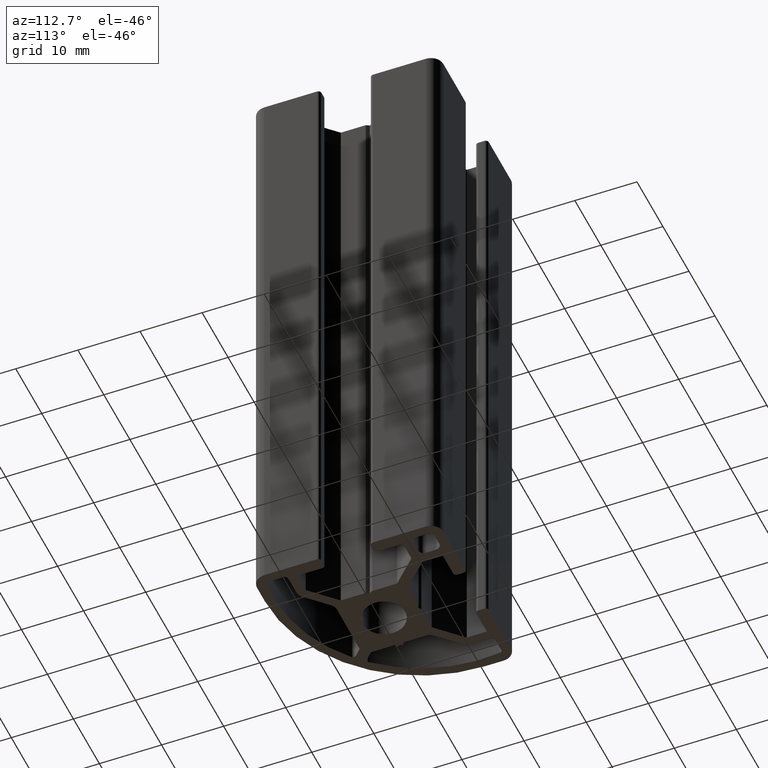
[diagram: clean part render]
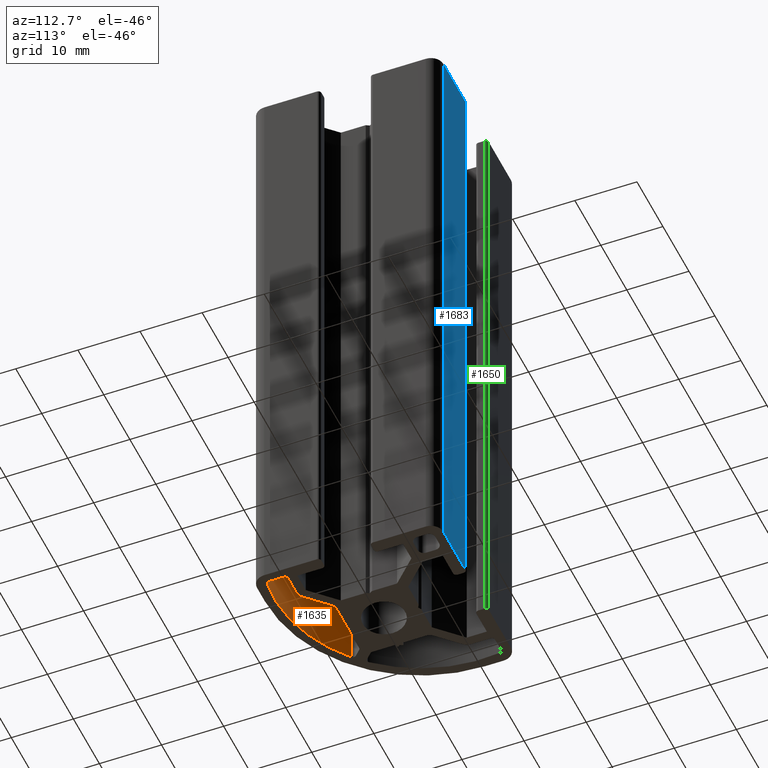
[diagram: same view with three faces highlighted in distinct colors, each labeled with its STEP entity id]
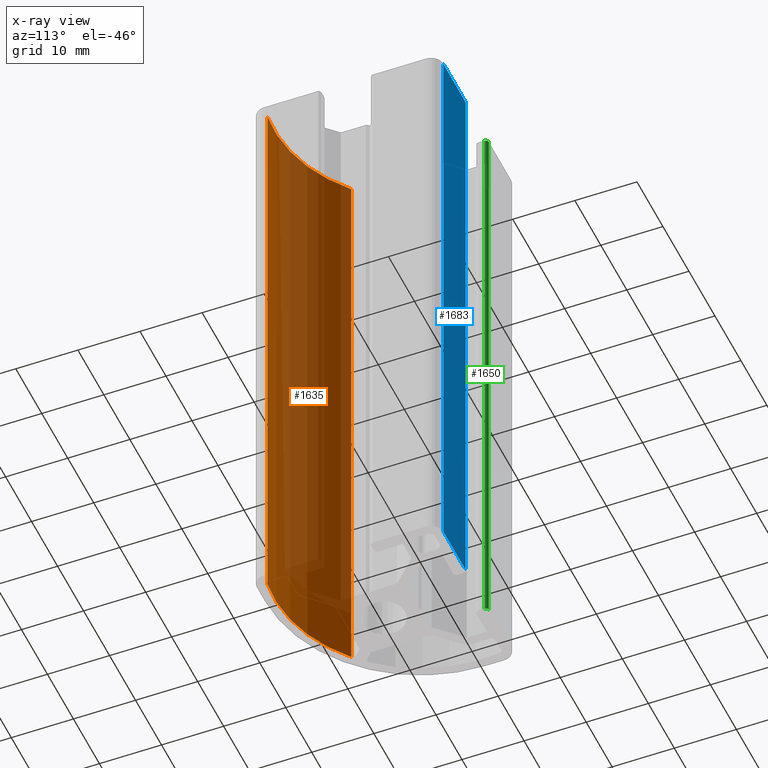
[diagram: x-ray of the same camera — body ghosted, the three highlighted faces saturated]
A machine part, auxiliary view with three faces highlighted in distinct colors.
The next image is the same camera in x-ray (body ghosted, the three faces saturated) — at least one of them is partly hidden behind the body in this view.
Their STEP definitions:

[orange] entity #1635 — the highlighted cylindrical surface (partial cylindrical patch) has radius 23.5 mm, axis along (0, 0, 1).
#102=FACE_OUTER_BOUND('',#186,.T.);
#186=EDGE_LOOP('',(#1193,#1194,#1195,#1196));
#307=LINE('',#2490,#486);
#308=LINE('',#2496,#487);
#486=VECTOR('',#2007,100.);
#487=VECTOR('',#2014,100.);
#636=CIRCLE('',#1748,23.5);
#637=CIRCLE('',#1749,23.5);
#730=VERTEX_POINT('',#2486);
#731=VERTEX_POINT('',#2488);
#732=VERTEX_POINT('',#2492);
#733=VERTEX_POINT('',#2494);
#921=EDGE_CURVE('',#731,#730,#307,.T.);
#922=EDGE_CURVE('',#730,#732,#636,.T.);
#923=EDGE_CURVE('',#733,#731,#637,.T.);
#924=EDGE_CURVE('',#733,#732,#308,.T.);
#1193=ORIENTED_EDGE('',*,*,#922,.F.);
#1194=ORIENTED_EDGE('',*,*,#921,.F.);
#1195=ORIENTED_EDGE('',*,*,#923,.F.);
#1196=ORIENTED_EDGE('',*,*,#924,.T.);
#1588=CYLINDRICAL_SURFACE('',#1747,23.5);
#1635=ADVANCED_FACE('',(#102),#1588,.F.);
#1747=AXIS2_PLACEMENT_3D('',#2491,#2008,#2009);
#1748=AXIS2_PLACEMENT_3D('',#2493,#2010,#2011);
#1749=AXIS2_PLACEMENT_3D('',#2495,#2012,#2013);
#2007=DIRECTION('',(0.,0.,1.));
#2008=DIRECTION('center_axis',(0.,0.,1.));
#2009=DIRECTION('ref_axis',(0.662754304910145,0.74883691904384,0.));
#2010=DIRECTION('center_axis',(0.,0.,-1.));
#2011=DIRECTION('ref_axis',(0.662754304910145,0.74883691904384,0.));
#2012=DIRECTION('center_axis',(0.,0.,1.));
#2013=DIRECTION('ref_axis',(0.662754304910145,0.74883691904384,0.));
#2014=DIRECTION('',(0.,0.,1.));
#2486=CARTESIAN_POINT('',(13.0652173889186,-13.2992369416825,100.));
#2488=CARTESIAN_POINT('',(13.0652173889186,-13.2992369416825,0.));
#2490=CARTESIAN_POINT('',(13.0652173889186,-13.2992369416825,0.));
#2491=CARTESIAN_POINT('Origin',(10.0000000329668,10.0000000106465,0.));
#2492=CARTESIAN_POINT('',(-5.57472613242158,-7.59766758688373,100.));
#2493=CARTESIAN_POINT('Origin',(10.0000000329668,10.0000000106465,100.));
#2494=CARTESIAN_POINT('',(-5.57472613242158,-7.59766758688373,0.));
#2495=CARTESIAN_POINT('Origin',(10.0000000329668,10.0000000106465,0.));
#2496=CARTESIAN_POINT('',(-5.57472613242158,-7.59766758688373,0.));

[blue] entity #1683 — the highlighted planar face has unit normal (0, 1, 0).
#69=PLANE('',#1829);
#150=FACE_OUTER_BOUND('',#235,.T.);
#235=EDGE_LOOP('',(#1383,#1384,#1385,#1386));
#338=LINE('',#2581,#517);
#419=LINE('',#2786,#598);
#420=LINE('',#2788,#599);
#421=LINE('',#2789,#600);
#517=VECTOR('',#2094,100.);
#598=VECTOR('',#2285,8.49999995006791);
#599=VECTOR('',#2286,100.);
#600=VECTOR('',#2287,8.49999995006791);
#762=VERTEX_POINT('',#2578);
#763=VERTEX_POINT('',#2580);
#832=VERTEX_POINT('',#2785);
#833=VERTEX_POINT('',#2787);
#965=EDGE_CURVE('',#762,#763,#338,.T.);
#1067=EDGE_CURVE('',#762,#832,#419,.T.);
#1068=EDGE_CURVE('',#833,#832,#420,.T.);
#1069=EDGE_CURVE('',#763,#833,#421,.T.);
#1383=ORIENTED_EDGE('',*,*,#965,.F.);
#1384=ORIENTED_EDGE('',*,*,#1067,.T.);
#1385=ORIENTED_EDGE('',*,*,#1068,.F.);
#1386=ORIENTED_EDGE('',*,*,#1069,.F.);
#1683=ADVANCED_FACE('',(#150),#69,.T.);
#1829=AXIS2_PLACEMENT_3D('',#2784,#2283,#2284);
#2094=DIRECTION('',(0.,0.,-1.));
#2283=DIRECTION('center_axis',(1.51799940237017E-11,1.,0.));
#2284=DIRECTION('ref_axis',(-1.,1.51800350067788E-11,0.));
#2285=DIRECTION('',(1.,-1.51799940237017E-11,0.));
#2286=DIRECTION('',(0.,0.,1.));
#2287=DIRECTION('',(1.,-1.51799940237017E-11,0.));
#2578=CARTESIAN_POINT('',(4.50000004166974,15.0000000479323,100.));
#2580=CARTESIAN_POINT('',(4.50000004166974,15.0000000479323,0.));
#2581=CARTESIAN_POINT('',(4.50000004167733,14.9999999960576,0.));
#2784=CARTESIAN_POINT('Origin',(12.9999999917377,14.9999999959286,0.));
#2785=CARTESIAN_POINT('',(12.9999999917377,14.9999999959286,100.));
#2786=CARTESIAN_POINT('',(6.49999999598268,14.9999999960272,100.));
#2787=CARTESIAN_POINT('',(12.9999999917377,14.9999999959286,0.));
#2788=CARTESIAN_POINT('',(12.9999999917377,14.9999999959286,0.));
#2789=CARTESIAN_POINT('',(6.49999999598268,14.9999999960272,0.));

[green] entity #1650 — the highlighted cylindrical surface (edge-blend (fillet) strip) has radius 0.5 mm, axis along (0, 0, 1).
#117=FACE_OUTER_BOUND('',#202,.T.);
#202=EDGE_LOOP('',(#1251,#1252,#1253,#1254));
#339=LINE('',#2588,#518);
#340=LINE('',#2591,#519);
#518=VECTOR('',#2101,100.);
#519=VECTOR('',#2104,100.);
#650=CIRCLE('',#1777,0.500000002025547);
#651=CIRCLE('',#1778,0.500000002025547);
#764=VERTEX_POINT('',#2584);
#765=VERTEX_POINT('',#2585);
#766=VERTEX_POINT('',#2587);
#767=VERTEX_POINT('',#2589);
#967=EDGE_CURVE('',#764,#765,#650,.T.);
#968=EDGE_CURVE('',#766,#764,#339,.T.);
#969=EDGE_CURVE('',#767,#766,#651,.T.);
#970=EDGE_CURVE('',#765,#767,#340,.T.);
#1251=ORIENTED_EDGE('',*,*,#967,.F.);
#1252=ORIENTED_EDGE('',*,*,#968,.F.);
#1253=ORIENTED_EDGE('',*,*,#969,.F.);
#1254=ORIENTED_EDGE('',*,*,#970,.F.);
#1595=CYLINDRICAL_SURFACE('',#1776,0.500000002025547);
#1650=ADVANCED_FACE('',(#117),#1595,.T.);
#1776=AXIS2_PLACEMENT_3D('',#2583,#2097,#2098);
#1777=AXIS2_PLACEMENT_3D('',#2586,#2099,#2100);
#1778=AXIS2_PLACEMENT_3D('',#2590,#2102,#2103);
#2097=DIRECTION('center_axis',(0.,0.,1.));
#2098=DIRECTION('ref_axis',(-1.,0.,0.));
#2099=DIRECTION('center_axis',(0.,0.,1.));
#2100=DIRECTION('ref_axis',(-1.,0.,0.));
#2101=DIRECTION('',(0.,0.,1.));
#2102=DIRECTION('center_axis',(0.,0.,-1.));
#2103=DIRECTION('ref_axis',(-1.,0.,0.));
#2104=DIRECTION('',(0.,0.,-1.));
#2583=CARTESIAN_POINT('Origin',(-4.49999995237291,14.5000000459068,0.));
#2584=CARTESIAN_POINT('',(-3.99999995034739,14.5000000459068,100.));
#2585=CARTESIAN_POINT('',(-4.49999995237285,15.0000000479329,100.));
#2586=CARTESIAN_POINT('Origin',(-4.49999995237291,14.5000000459068,100.));
#2587=CARTESIAN_POINT('',(-3.99999995034739,14.5000000459068,0.));
#2588=CARTESIAN_POINT('',(-3.99999995034739,14.5000000459068,0.));
#2589=CARTESIAN_POINT('',(-4.49999995237285,15.0000000479329,0.));
#2590=CARTESIAN_POINT('Origin',(-4.49999995237291,14.5000000459068,0.));
#2591=CARTESIAN_POINT('',(-4.49999995236532,14.9999999961942,0.));